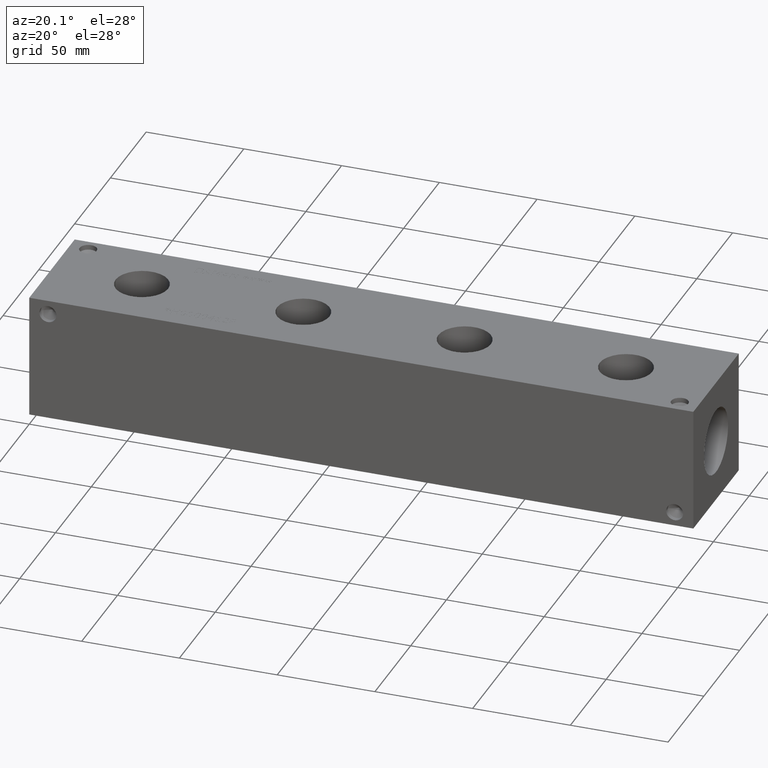
[diagram: clean part render]
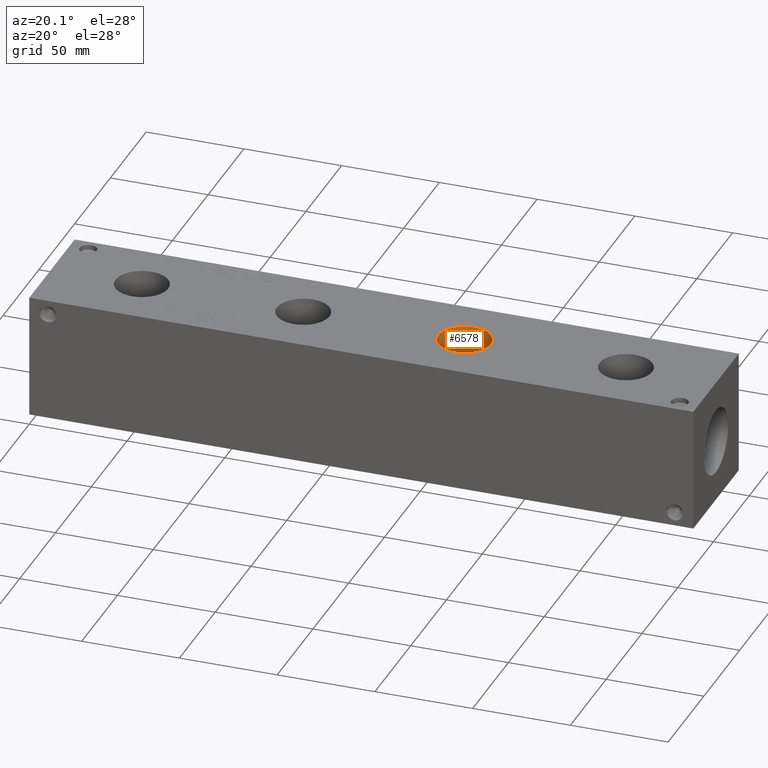
[diagram: same view with one face highlighted and labeled with its STEP entity id]
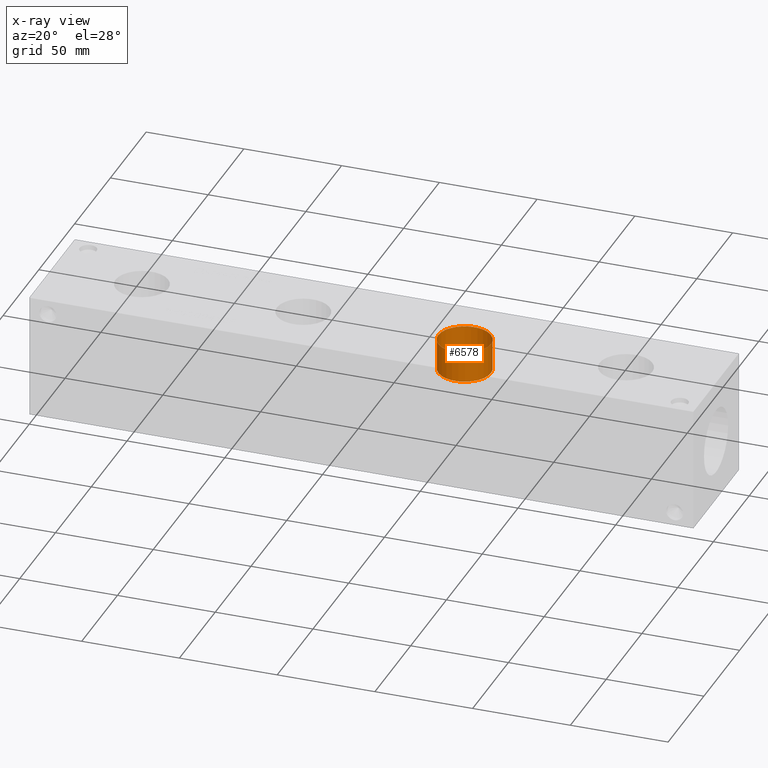
[diagram: x-ray of the same camera — body ghosted, the highlighted face saturated]
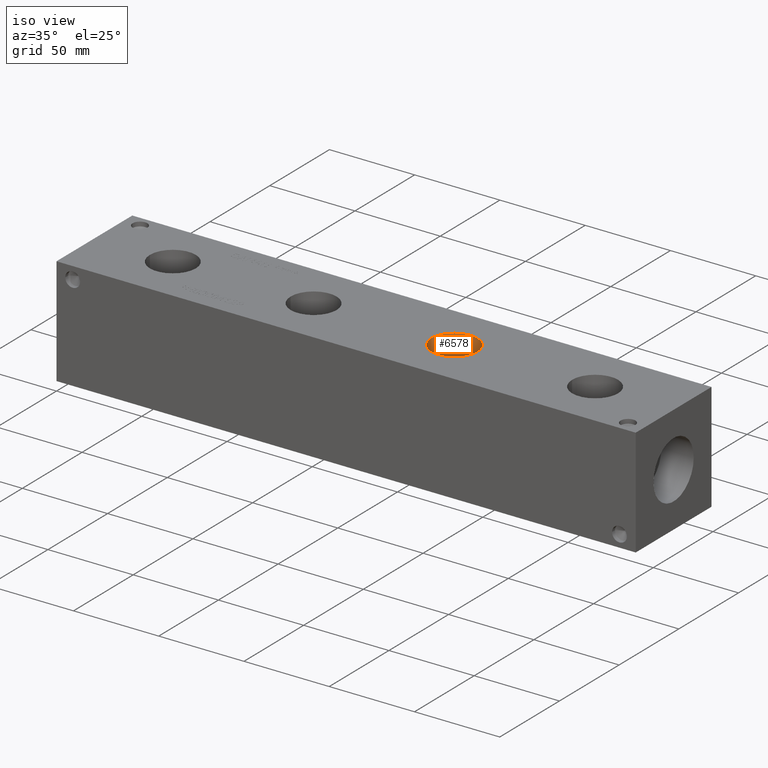
[diagram: same view with one face highlighted and labeled with its STEP entity id]
A machine part, auxiliary view. The second image highlights one B-rep face of the part: STEP entity #6578.
The next image is the same camera in x-ray: the body ghosted, the highlighted face saturated — about 0% of this face is hidden behind the body in this view.
A second angle (iso view) of the same face is appended — the face is thin or edge-on in the first view.
In plain terms, the highlighted cylindrical surface (bore or boss wall) has radius 13.462 mm, axis along (0, 0, 1).
Its self-contained STEP definition (entity closure, byte-faithful):
#18=CYLINDRICAL_SURFACE('',#6878,13.462);
#46=CIRCLE('',#6705,13.462);
#47=CIRCLE('',#6706,13.462);
#66=CIRCLE('',#6875,13.462);
#67=CIRCLE('',#6876,13.462);
#678=FACE_OUTER_BOUND('',#1046,.T.);
#1046=EDGE_LOOP('',(#5778,#5779,#5780,#5781,#5782,#5783));
#1745=LINE('',#10964,#2432);
#2432=VECTOR('',#8117,13.462);
#2891=VERTEX_POINT('',#9986);
#2892=VERTEX_POINT('',#9987);
#3178=VERTEX_POINT('',#10957);
#3179=VERTEX_POINT('',#10958);
#3637=EDGE_CURVE('',#2891,#2892,#46,.T.);
#3638=EDGE_CURVE('',#2892,#2891,#47,.T.);
#4059=EDGE_CURVE('',#3178,#3179,#66,.T.);
#4060=EDGE_CURVE('',#3179,#3178,#67,.T.);
#4062=EDGE_CURVE('',#2892,#3179,#1745,.T.);
#5778=ORIENTED_EDGE('',*,*,#3637,.F.);
#5779=ORIENTED_EDGE('',*,*,#3638,.F.);
#5780=ORIENTED_EDGE('',*,*,#4062,.T.);
#5781=ORIENTED_EDGE('',*,*,#4059,.F.);
#5782=ORIENTED_EDGE('',*,*,#4060,.F.);
#5783=ORIENTED_EDGE('',*,*,#4062,.F.);
#6578=ADVANCED_FACE('',(#678),#18,.F.);
#6705=AXIS2_PLACEMENT_3D('',#9988,#7383,#7384);
#6706=AXIS2_PLACEMENT_3D('',#9989,#7385,#7386);
#6875=AXIS2_PLACEMENT_3D('',#10959,#8109,#8110);
#6876=AXIS2_PLACEMENT_3D('',#10960,#8111,#8112);
#6878=AXIS2_PLACEMENT_3D('',#10963,#8115,#8116);
#7383=DIRECTION('center_axis',(0.,0.,-1.));
#7384=DIRECTION('ref_axis',(1.,0.,0.));
#7385=DIRECTION('center_axis',(0.,0.,-1.));
#7386=DIRECTION('ref_axis',(1.,0.,0.));
#8109=DIRECTION('center_axis',(0.,0.,1.));
#8110=DIRECTION('ref_axis',(1.,0.,0.));
#8111=DIRECTION('center_axis',(0.,0.,1.));
#8112=DIRECTION('ref_axis',(1.,0.,0.));
#8115=DIRECTION('center_axis',(0.,0.,1.));
#8116=DIRECTION('ref_axis',(1.,0.,0.));
#8117=DIRECTION('',(0.,0.,-1.));
#9986=CARTESIAN_POINT('',(224.5868,31.75,63.5));
#9987=CARTESIAN_POINT('',(197.6628,31.75,63.5));
#9988=CARTESIAN_POINT('Origin',(211.1248,31.75,63.5));
#9989=CARTESIAN_POINT('Origin',(211.1248,31.75,63.5));
#10957=CARTESIAN_POINT('',(224.5868,31.75,47.6504));
#10958=CARTESIAN_POINT('',(197.6628,31.75,47.6504));
#10959=CARTESIAN_POINT('Origin',(211.1248,31.75,47.6504));
#10960=CARTESIAN_POINT('Origin',(211.1248,31.75,47.6504));
#10963=CARTESIAN_POINT('Origin',(211.1248,31.75,55.5752));
#10964=CARTESIAN_POINT('',(197.6628,31.75,55.5752));